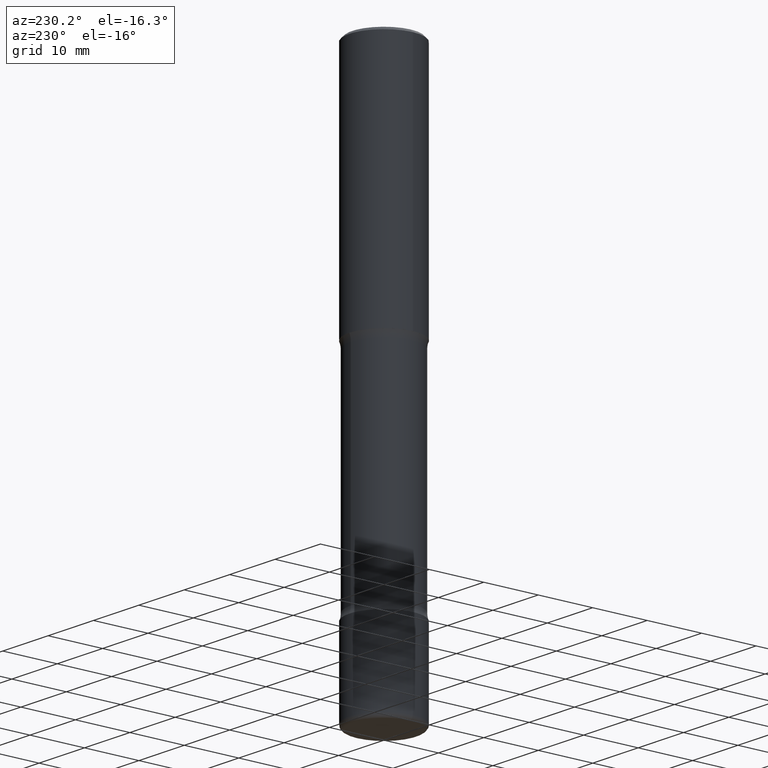
[diagram: clean part render]
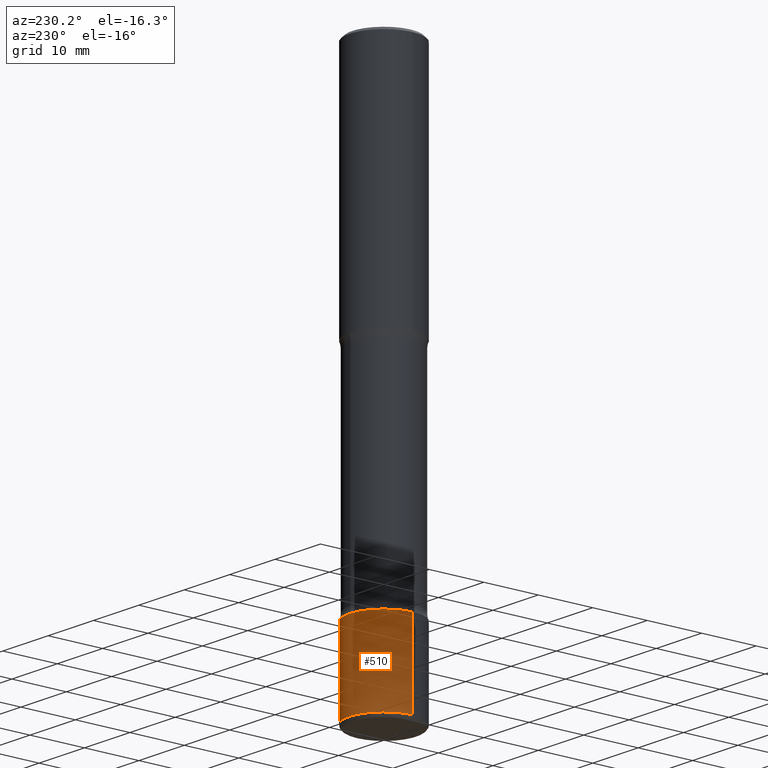
[diagram: same view with one face highlighted and labeled with its STEP entity id]
A machine part, auxiliary view. The second image highlights one B-rep face of the part: STEP entity #510.
In plain terms, the highlighted cylindrical surface (partial cylindrical patch) has radius 6.35 mm, axis along (-0, 0, 1).
Its self-contained STEP definition (entity closure, byte-faithful):
#26 = CARTESIAN_POINT ( 'NONE',  ( -0.2500000000000003331, -1.104610837750119891E-14, -3.375000000000000000 ) ) ;
#30 = VERTEX_POINT ( 'NONE', #291 ) ;
#49 = FACE_OUTER_BOUND ( 'NONE', #481, .T. ) ;
#62 = CARTESIAN_POINT ( 'NONE',  ( 0.2500000000000002776, -1.560692158462885722E-14, -3.969999999999999307 ) ) ;
#63 = VERTEX_POINT ( 'NONE', #340 ) ;
#84 = ORIENTED_EDGE ( 'NONE', *, *, #490, .F. ) ;
#91 = LINE ( 'NONE', #221, #545 ) ;
#119 = LINE ( 'NONE', #205, #293 ) ;
#123 = AXIS2_PLACEMENT_3D ( 'NONE', #304, #428, #215 ) ;
#178 = DIRECTION ( 'NONE',  ( -2.445468806185136877E-29, 3.491481338843145188E-15, 1.000000000000000000 ) ) ;
#196 = EDGE_CURVE ( 'NONE', #331, #30, #91, .T. ) ;
#202 = ORIENTED_EDGE ( 'NONE', *, *, #456, .T. ) ;
#205 = CARTESIAN_POINT ( 'NONE',  ( -0.2500000000000003331, 1.776356839400252831E-15, -1.229733772563727987E-29 ) ) ;
#215 = DIRECTION ( 'NONE',  ( 1.000000000000000000, -6.982962677686269077E-15, 0.000000000000000000 ) ) ;
#219 = AXIS2_PLACEMENT_3D ( 'NONE', #330, #537, #448 ) ;
#221 = CARTESIAN_POINT ( 'NONE',  ( 0.2500000000000003331, -1.745740669421569044E-15, 1.219044193948985630E-29 ) ) ;
#222 = ORIENTED_EDGE ( 'NONE', *, *, #359, .T. ) ;
#223 = DIRECTION ( 'NONE',  ( -2.445468806185136597E-29, 3.491481338843145583E-15, 1.000000000000000000 ) ) ;
#250 = CIRCLE ( 'NONE', #219, 0.2500000000000002776 ) ;
#263 = CYLINDRICAL_SURFACE ( 'NONE', #496, 0.2500000000000003331 ) ;
#284 = CIRCLE ( 'NONE', #123, 0.2500000000000003331 ) ;
#286 = VERTEX_POINT ( 'NONE', #26 ) ;
#291 = CARTESIAN_POINT ( 'NONE',  ( 0.2500000000000003331, -1.352949018801718435E-14, -3.375000000000000000 ) ) ;
#293 = VECTOR ( 'NONE', #349, 39.37007874015748143 ) ;
#304 = CARTESIAN_POINT ( 'NONE',  ( 8.253457220874836014E-29, -1.178374951859561452E-14, -3.375000000000000000 ) ) ;
#330 = CARTESIAN_POINT ( 'NONE',  ( 9.708511160554990630E-29, -1.386118091520728581E-14, -3.969999999999999307 ) ) ;
#331 = VERTEX_POINT ( 'NONE', #62 ) ;
#340 = CARTESIAN_POINT ( 'NONE',  ( -0.2500000000000002776, -1.208482407580703376E-14, -3.969999999999999307 ) ) ;
#349 = DIRECTION ( 'NONE',  ( -2.445468806185136877E-29, 3.491481338843145188E-15, 1.000000000000000000 ) ) ;
#359 = EDGE_CURVE ( 'NONE', #331, #63, #250, .T. ) ;
#393 = DIRECTION ( 'NONE',  ( 1.000000000000000000, -6.982962677686266711E-15, 4.876176775795935793E-29 ) ) ;
#428 = DIRECTION ( 'NONE',  ( -2.445468806185136597E-29, 3.491481338843145583E-15, 1.000000000000000000 ) ) ;
#448 = DIRECTION ( 'NONE',  ( 1.000000000000000000, -6.982962677686270655E-15, 0.000000000000000000 ) ) ;
#453 = ORIENTED_EDGE ( 'NONE', *, *, #196, .F. ) ;
#456 = EDGE_CURVE ( 'NONE', #63, #286, #119, .T. ) ;
#457 = CARTESIAN_POINT ( 'NONE',  ( 0.000000000000000000, 0.000000000000000000, 0.000000000000000000 ) ) ;
#481 = EDGE_LOOP ( 'NONE', ( #222, #202, #84, #453 ) ) ;
#490 = EDGE_CURVE ( 'NONE', #30, #286, #284, .T. ) ;
#496 = AXIS2_PLACEMENT_3D ( 'NONE', #457, #223, #393 ) ;
#510 = ADVANCED_FACE ( 'NONE', ( #49 ), #263, .T. ) ;
#537 = DIRECTION ( 'NONE',  ( -2.445468806185136597E-29, 3.491481338843145583E-15, 1.000000000000000000 ) ) ;
#545 = VECTOR ( 'NONE', #178, 39.37007874015748143 ) ;